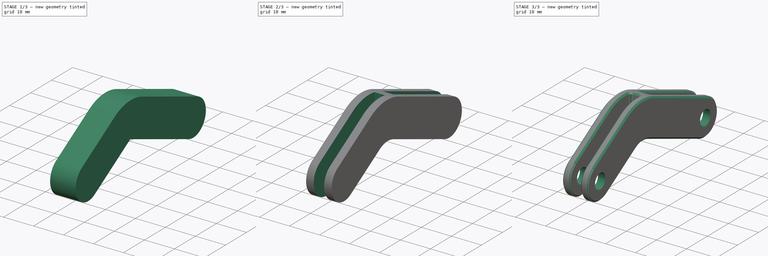
[diagram: build sequence overview — one tinted view per stage of 3, left to right]
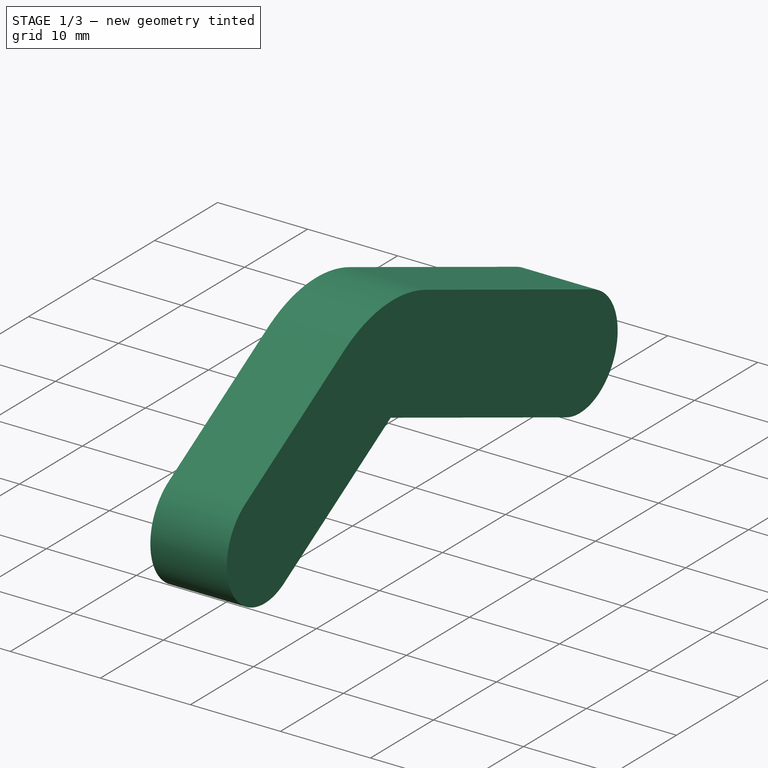
[diagram: stage 1 of 3 — iso view after this stage's code; geometry added in this stage tinted green]
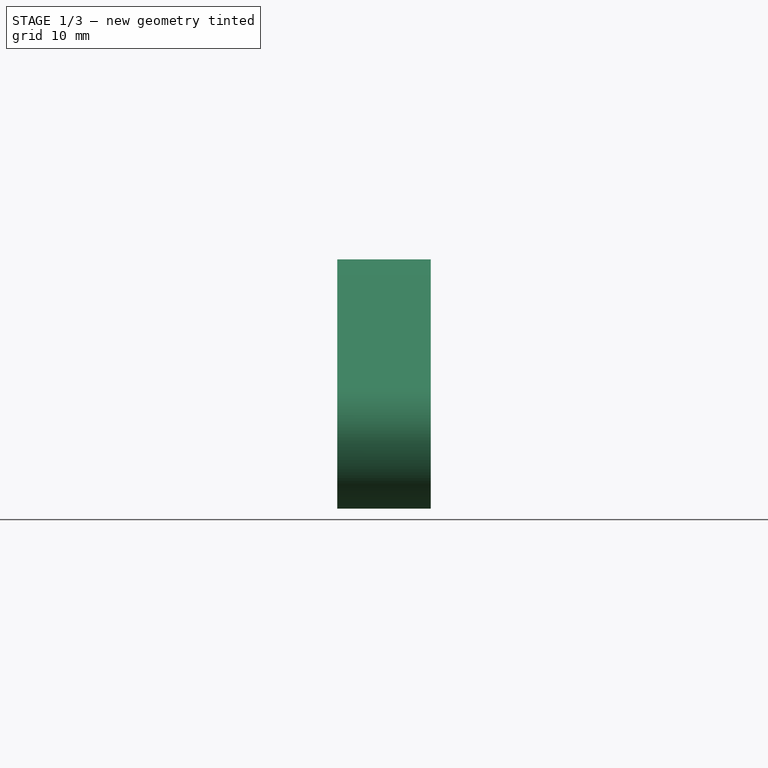
[diagram: stage 1 of 3 — front view after this stage's code; geometry added in this stage tinted green]
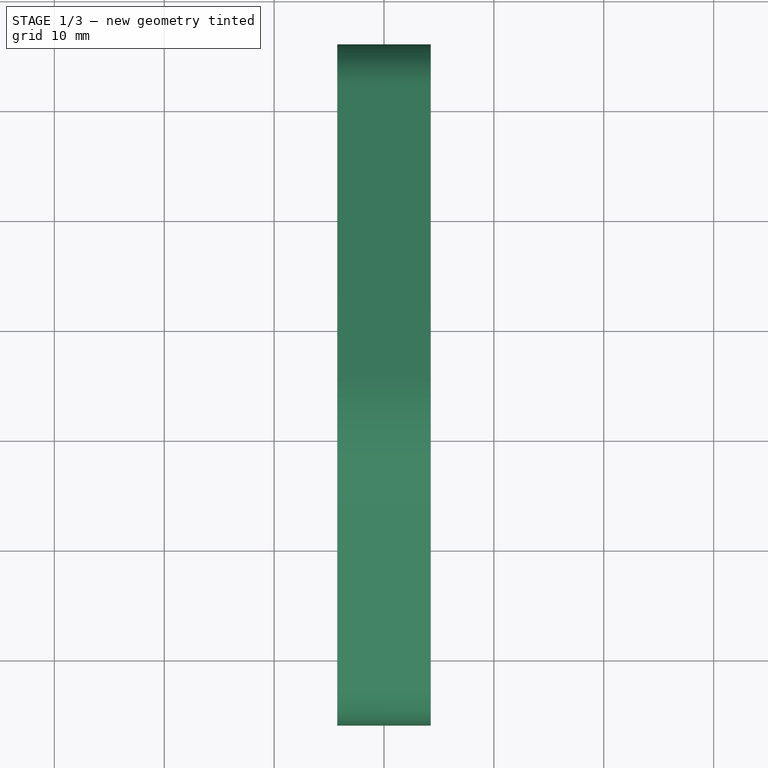
[diagram: stage 1 of 3 — top view after this stage's code; geometry added in this stage tinted green]
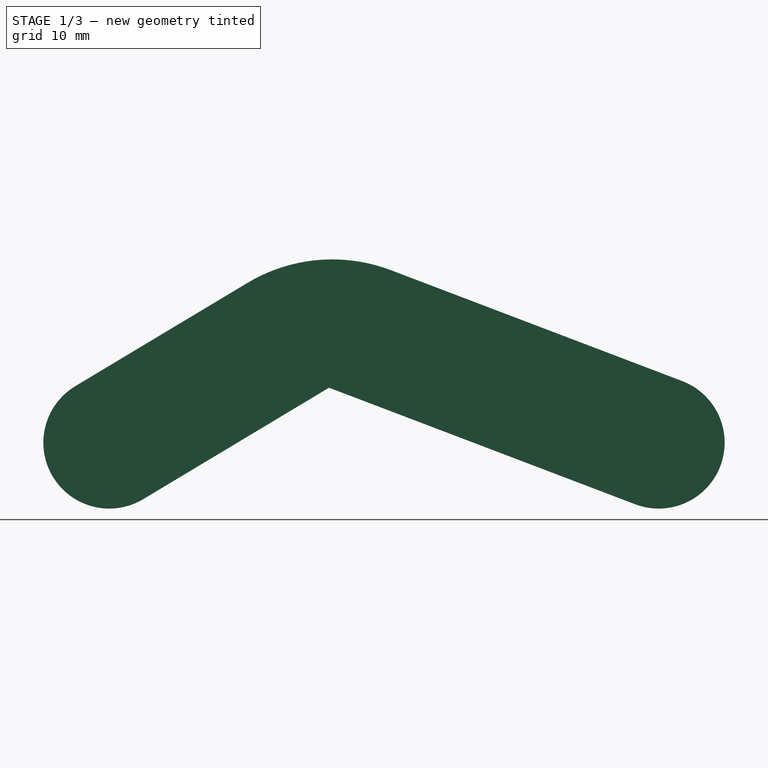
[diagram: stage 1 of 3 — right view after this stage's code; geometry added in this stage tinted green]
FCSTD DOCUMENT  (FreeCAD 2023.114R26244 +5346 (Git))
Label: arm
License: All rights reserved
LicenseURL: http://en.wikipedia.org/wiki/All_rights_reserved
objects: Sketcher::SketchObject×4, PartDesign::Fillet×3, PartDesign::Pad×2, PartDesign::Pocket×2, Spreadsheet::Sheet×1, PartDesign::Chamfer×1, PartDesign::Body×1
note: 33 computed .brp shape members not serialized (recipe doc carries the construction recipe); baked Part::Feature solids carry a one-line shape summary decoded from their .brp

FEATURE [Spreadsheet::Sheet] Spreadsheet
  PythonMode = false
  ShowCells = 0
  TreeRank = 1
  cells = A1=clevis_dia; B1(clevis_dia)=12; A2=clevis_hole_dia; B2(clevis_hole_dia)=5; A3=clevis_wall_thk; B3(clevis_wall_thk)=2.5; A4=clevis_gap_width; B4(clevis_gap_width)=3.5; A5=clevis_thk; B5(clevis_thk)==clevis_wall_thk * 2 + clevis_gap_width; A6=hole_centers; B6(hole_centers)=50; A7=elbow_x; B7(elbow_x)=20; A8=elbow_z; B8(elbow_z)=5; A9=elbow_rad_outer; B9(elbow_rad_outer)=15; A10=elbow_rad_inner; B10(elbow_rad_inner)==elbow_rad_outer / 2; A11=midpoint_wall_width; B11(midpoint_wall_width)=4
FEATURE [Sketcher::SketchObject] Sketch
  ArcFitTolerance = 1e-06
  AttachmentSupport = -> [YZ_Plane]
  ExternalBSplineMaxDegree = 5
  ExternalBSplineTolerance = 0.0001
  FullyConstrained = true
  InternalTolerance = 1e-06
  InvalidShape = false
  MakeInternals = false
  MapMode = 5
  Placement = pos=(0,0,0) rot=(0.57735,0.57735,0.57735;2.0944rad)
  Support = -> [YZ_Plane]
  TreeRank = 12
  ValidateShape = true
  expr: Constraints[2] = Spreadsheet.clevis_dia
  expr: Constraints[3] = Spreadsheet.clevis_dia
  expr: Constraints[4] = Spreadsheet.hole_centers
  sketch-geometry (2):
    g0: Circle CenterX=0 CenterY=0 CenterZ=0 NormalX=0 NormalY=0 NormalZ=1 AngleXU=0 Radius=6
    g1: Circle CenterX=50 CenterY=0 CenterZ=0 NormalX=0 NormalY=0 NormalZ=1 AngleXU=0 Radius=6
  constraints (5):
    c: Coincident(g0,g-1)
    c: PointOnObject(g1,g-1)
    c: Diameter(g0) = 12
    c: Diameter(g1) = 12
    c: Distance(g0,g1) = 50
FEATURE [PartDesign::Pad] Pad
  AddSubType = 0
  AlongSketchNormal = false
  AutoTaperInnerAngle = true
  CheckUpToFaceLimits = true
  ClaimChildren = false
  Direction = (1,-2e-16,3e-16)
  Fit = 0
  FitJoin = 0
  InnerFit = 0
  InnerFitJoin = 0
  InvalidShape = false
  Length = 8.5
  Length2 = 100
  Linearize = true
  Midplane = true
  NewSolid = false
  Profile = -> Sketch
  Refine = true
  Suppress = false
  TaperInnerAngle = 0
  TaperInnerAngleRev = 0
  TreeRank = 13
  Type = 0
  ValidateShape = true
  _ProfileBasedVersion = 1
  expr: Length = Spreadsheet.clevis_thk
FEATURE [Sketcher::SketchObject] Sketch001
  ArcFitTolerance = 1e-06
  AttachmentSupport = -> [YZ_Plane]
  ExternalBSplineMaxDegree = 5
  ExternalBSplineTolerance = 0.0001
  ExternalGeometry = -> [Pad]
  FullyConstrained = true
  InternalTolerance = 1e-06
  InvalidShape = false
  MakeInternals = false
  MapMode = 5
  Placement = pos=(0,0,0) rot=(0.57735,0.57735,0.57735;2.0944rad)
  Support = -> [YZ_Plane]
  TreeRank = 14
  ValidateShape = true
  expr: Constraints[8] = Spreadsheet.elbow_x
  expr: Constraints[9] = Spreadsheet.elbow_z
  sketch-geometry (6):
    g0: LineSegment StartX=3.08634 StartY=-5.14534 StartZ=0 EndX=20 EndY=5 EndZ=0
    g1: LineSegment StartX=20 StartY=5 StartZ=0 EndX=47.8654 EndY=-5.60746 EndZ=0
    g2: LineSegment StartX=52.1346 StartY=5.60746 StartZ=0 EndX=18.8239 EndY=18.2878 EndZ=0
    g3: LineSegment StartX=18.8239 StartY=18.2878 StartZ=0 EndX=-3.08634 EndY=5.14534 EndZ=0
    g4: LineSegment StartX=-3.08634 StartY=5.14534 StartZ=0 EndX=3.08634 EndY=-5.14534 EndZ=0
    g5: LineSegment StartX=47.8654 StartY=-5.60746 StartZ=0 EndX=52.1346 EndY=5.60746 EndZ=0
  constraints (14):
    c: Coincident(g1,g0)
    c: Coincident(g3,g2)
    c: Tangent(g3,g-3) = -1.5708
    c: Tangent(g0,g-3) = -1.5708
    c: Tangent(g1,g-4) = -1.5708
    c: Tangent(g2,g-4) = -1.5708
    c: Parallel(g3,g0)
    c: Parallel(g1,g2)
    c: DistanceX(g-3,g0) = 20
    c: DistanceY(g-3,g0) = 5
    c: Coincident(g4,g3)
    c: Coincident(g4,g0)
    c: Coincident(g5,g1)
    c: Coincident(g5,g2)
FEATURE [PartDesign::Pad] Pad001
  AddSubType = 0
  AlongSketchNormal = false
  AutoTaperInnerAngle = true
  BaseFeature = -> Pad
  CheckUpToFaceLimits = true
  ClaimChildren = false
  Direction = (1,-2e-16,3e-16)
  Fit = 0
  FitJoin = 0
  InnerFit = 0
  InnerFitJoin = 0
  InvalidShape = false
  Length = 8.5
  Length2 = 100
  Linearize = true
  Midplane = true
  NewSolid = false
  Profile = -> Sketch001
  Refine = true
  Suppress = false
  TaperInnerAngle = 0
  TaperInnerAngleRev = 0
  TreeRank = 15
  Type = 0
  ValidateShape = true
  _ProfileBasedVersion = 1
  expr: Length = Spreadsheet.clevis_thk
FEATURE [PartDesign::Fillet] Fillet
  AddSubType = 0
  Base = -> Pad001 [Edge11]
  BaseFeature = -> Pad001
  InvalidShape = false
  NewSolid = false
  Radius = 15
  Refine = true
  SupportTransform = false
  Suppress = false
  TreeRank = 16
  ValidateShape = true
  expr: Radius = Spreadsheet.elbow_rad_outer
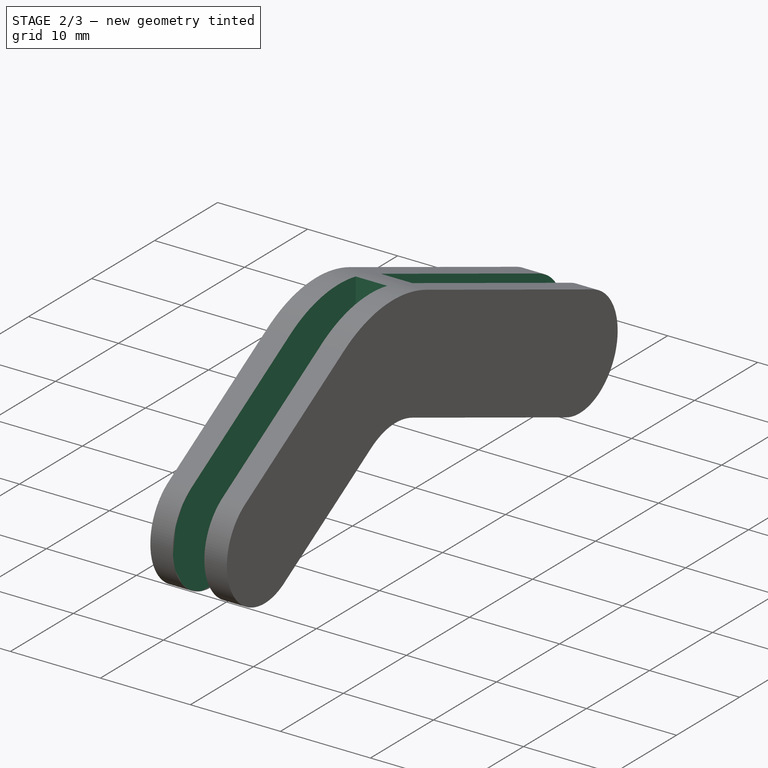
[diagram: stage 2 of 3 — iso view after this stage's code; geometry added in this stage tinted green]
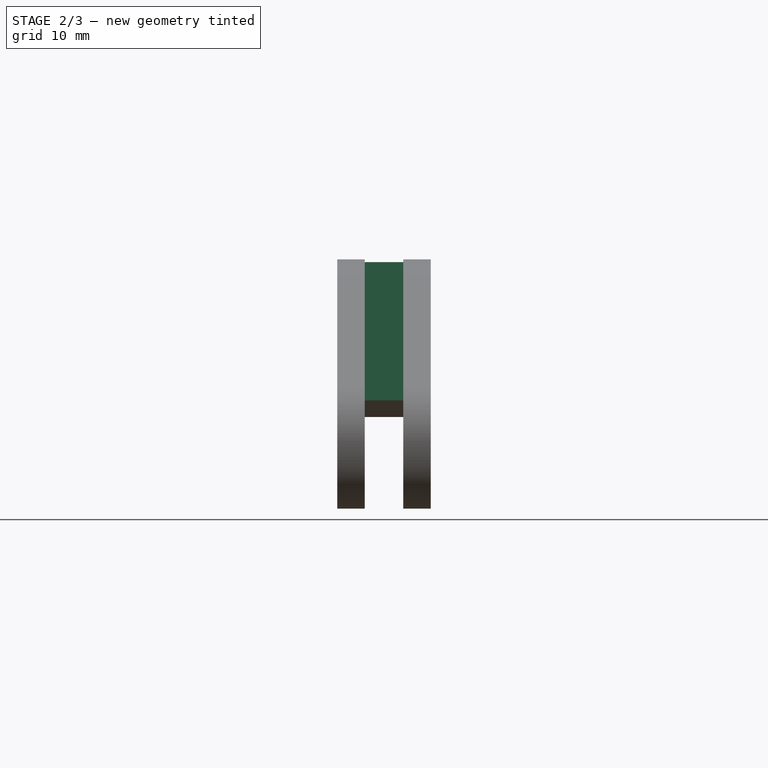
[diagram: stage 2 of 3 — front view after this stage's code; geometry added in this stage tinted green]
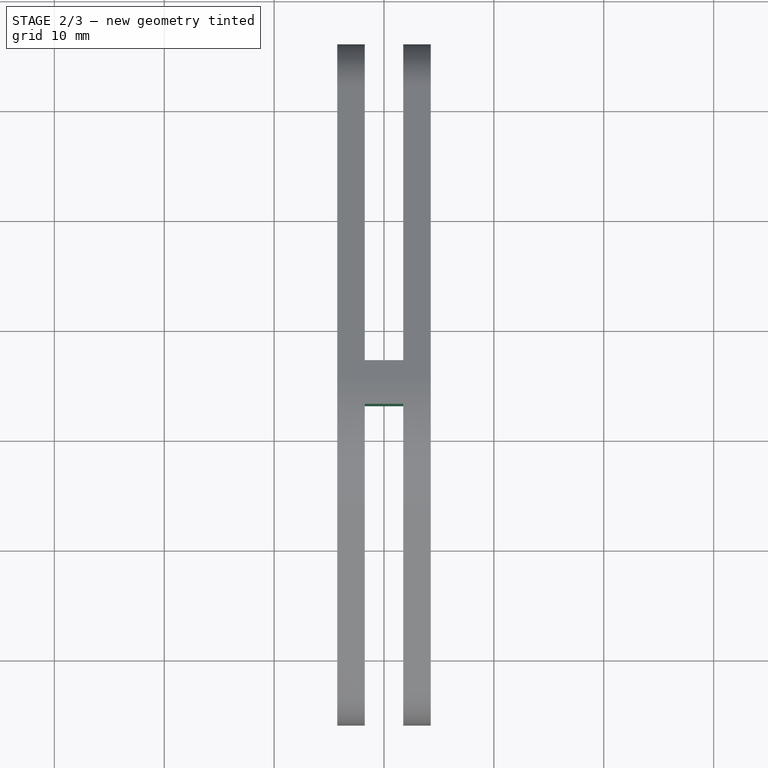
[diagram: stage 2 of 3 — top view after this stage's code; geometry added in this stage tinted green]
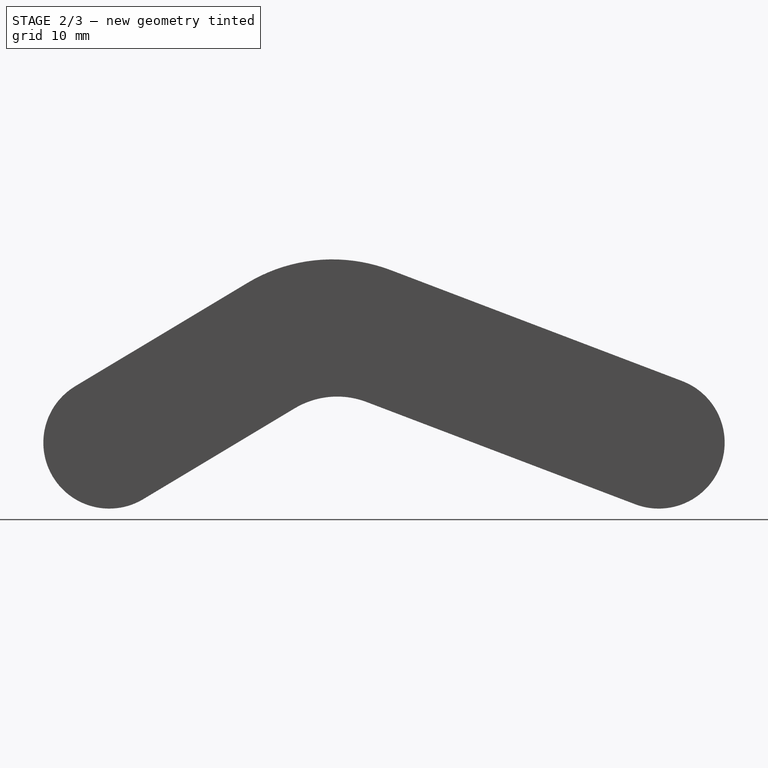
[diagram: stage 2 of 3 — right view after this stage's code; geometry added in this stage tinted green]
FEATURE [PartDesign::Fillet] Fillet001
  AddSubType = 0
  Base = -> Fillet [Edge22]
  BaseFeature = -> Fillet
  InvalidShape = false
  NewSolid = false
  Radius = 7.5
  Refine = true
  SupportTransform = false
  Suppress = false
  TreeRank = 17
  ValidateShape = true
  expr: Radius = Spreadsheet.elbow_rad_inner
FEATURE [Sketcher::SketchObject] Sketch002
  ArcFitTolerance = 1e-06
  AttachmentSupport = -> [XY_Plane]
  ExternalBSplineMaxDegree = 5
  ExternalBSplineTolerance = 0.0001
  FullyConstrained = true
  InternalTolerance = 1e-06
  InvalidShape = false
  MakeInternals = false
  MapMode = 5
  Support = -> [XY_Plane]
  TreeRank = 18
  ValidateShape = true
  expr: Constraints[16] = Spreadsheet.midpoint_wall_width
  expr: Constraints[17] = Spreadsheet.clevis_gap_width
  expr: Constraints[18] = Spreadsheet.clevis_gap_width
  expr: Constraints[19] = Spreadsheet.hole_centers / 2 - Spreadsheet.midpoint_wall_width / 2
  expr: Constraints[20] = Spreadsheet.clevis_dia
  sketch-geometry (8):
    g0: LineSegment StartX=-1.75 StartY=23 StartZ=0 EndX=1.75 EndY=23 EndZ=0
    g1: LineSegment StartX=1.75 StartY=23 StartZ=0 EndX=1.75 EndY=-12 EndZ=0
    g2: LineSegment StartX=1.75 StartY=-12 StartZ=0 EndX=-1.75 EndY=-12 EndZ=0
    g3: LineSegment StartX=-1.75 StartY=-12 StartZ=0 EndX=-1.75 EndY=23 EndZ=0
    g4: LineSegment StartX=1.75 StartY=27 StartZ=0 EndX=-1.75 EndY=27 EndZ=0
    g5: LineSegment StartX=-1.75 StartY=27 StartZ=0 EndX=-1.75 EndY=62 EndZ=0
    g6: LineSegment StartX=-1.75 StartY=62 StartZ=0 EndX=1.75 EndY=62 EndZ=0
    g7: LineSegment StartX=1.75 StartY=62 StartZ=0 EndX=1.75 EndY=27 EndZ=0
  constraints (22):
    c: Coincident(g0,g1)
    c: Coincident(g1,g2)
    c: Coincident(g2,g3)
    c: Coincident(g3,g0)
    c: Horizontal(g0)
    c: Vertical(g1)
    c: Vertical(g3)
    c: Coincident(g4,g5)
    c: Coincident(g5,g6)
    c: Coincident(g6,g7)
    c: Coincident(g7,g4)
    c: Horizontal(g6)
    c: Vertical(g5)
    c: Vertical(g7)
    c: Symmetric(g2,g1,g-2)
    c: Symmetric(g4,g4,g-2)
    c: DistanceY(g0,g4) = 4
    c: Distance(g0) = 3.5
    c: Distance(g4) = 3.5
    c: DistanceY(g-1,g0) = 23
    c: DistanceY(g2,g-1) = 12
    c: Equal(g1,g7)
FEATURE [PartDesign::Pocket] Pocket
  AddSubType = 1
  AutoTaperInnerAngle = true
  BaseFeature = -> Fillet001
  CheckUpToFaceLimits = true
  ClaimChildren = false
  Fit = 0
  FitJoin = 0
  InnerFit = 0
  InnerFitJoin = 0
  InvalidShape = false
  Length = 5
  Length2 = 100
  Linearize = true
  Midplane = true
  NewSolid = false
  Profile = -> Sketch002
  Refine = true
  Suppress = false
  TaperInnerAngle = 0
  TaperInnerAngleRev = 0
  TreeRank = 19
  Type = 1
  ValidateShape = true
  _ProfileBasedVersion = 1
  _Version = 1
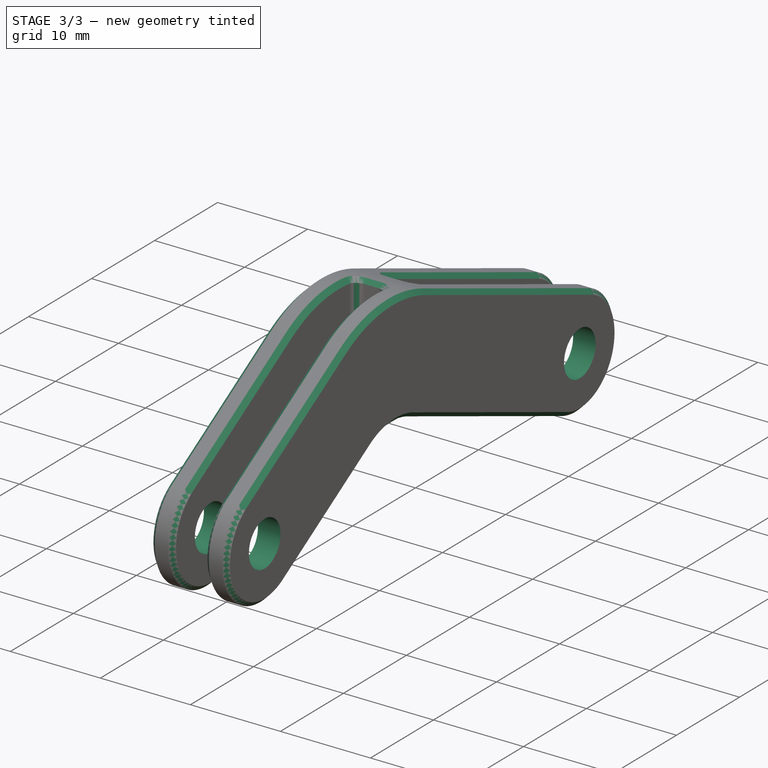
[diagram: stage 3 of 3 — iso view after this stage's code; geometry added in this stage tinted green]
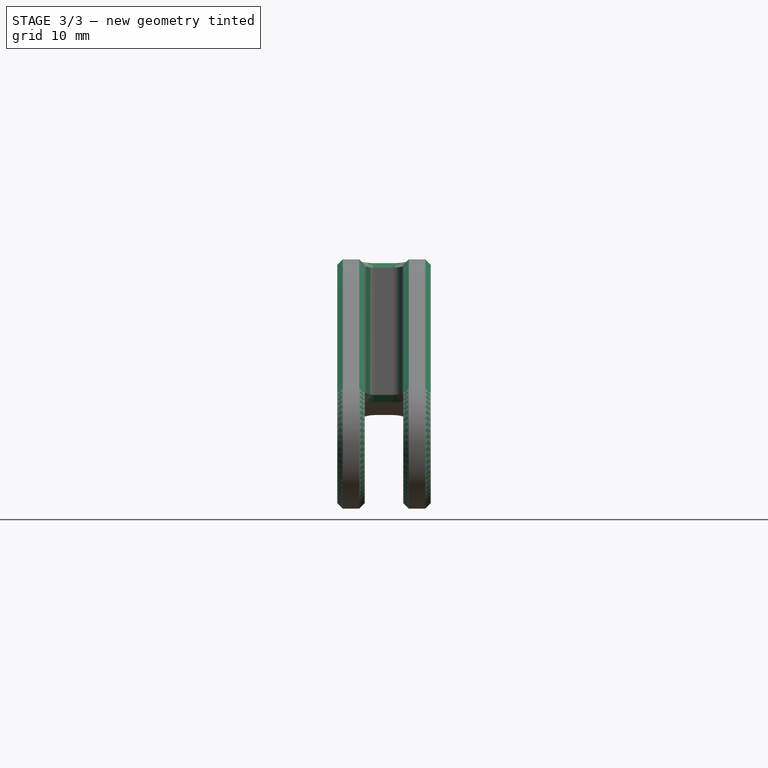
[diagram: stage 3 of 3 — front view after this stage's code; geometry added in this stage tinted green]
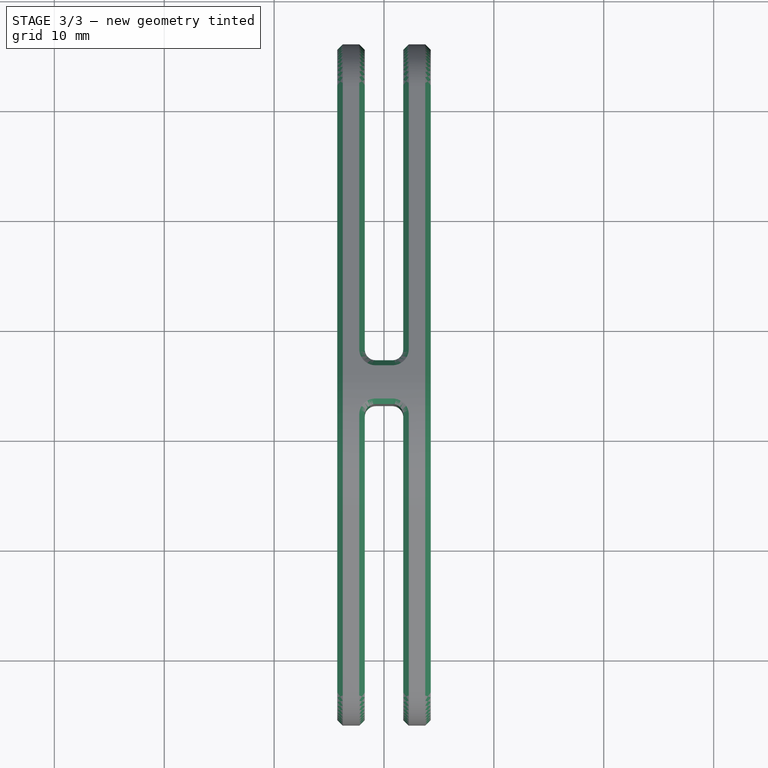
[diagram: stage 3 of 3 — top view after this stage's code; geometry added in this stage tinted green]
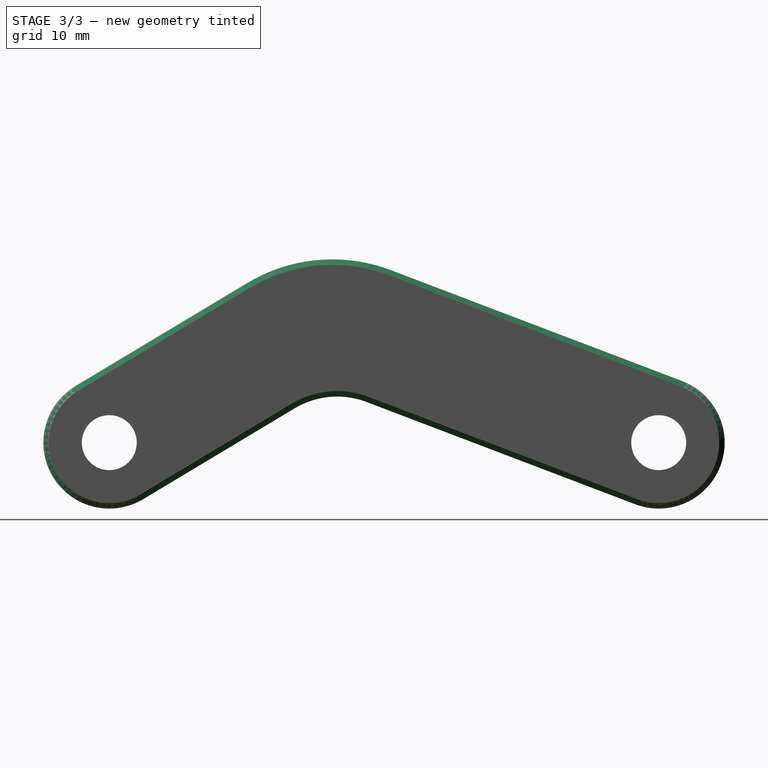
[diagram: stage 3 of 3 — right view after this stage's code; geometry added in this stage tinted green]
FEATURE [Sketcher::SketchObject] Sketch003
  ArcFitTolerance = 1e-06
  AttachmentSupport = -> [YZ_Plane]
  ExternalBSplineMaxDegree = 5
  ExternalBSplineTolerance = 0.0001
  FullyConstrained = true
  InternalTolerance = 1e-06
  InvalidShape = false
  MakeInternals = false
  MapMode = 5
  Placement = pos=(0,0,0) rot=(0.57735,0.57735,0.57735;2.0944rad)
  Support = -> [YZ_Plane]
  TreeRank = 20
  ValidateShape = true
  expr: Constraints[2] = Spreadsheet.hole_centers
  expr: Constraints[3] = Spreadsheet.clevis_hole_dia
  sketch-geometry (2):
    g0: Circle CenterX=0 CenterY=0 CenterZ=0 NormalX=0 NormalY=0 NormalZ=1 AngleXU=0 Radius=2.5
    g1: Circle CenterX=50 CenterY=0 CenterZ=0 NormalX=0 NormalY=0 NormalZ=1 AngleXU=0 Radius=2.5
  constraints (5):
    c: Coincident(g0,g-1)
    c: PointOnObject(g1,g-1)
    c: Distance(g0,g1) = 50
    c: Diameter(g0) = 5
    c: Equal(g1,g0)
FEATURE [PartDesign::Pocket] Pocket001
  AddSubType = 1
  AutoTaperInnerAngle = true
  BaseFeature = -> Pocket
  CheckUpToFaceLimits = true
  ClaimChildren = false
  Fit = 0
  FitJoin = 0
  InnerFit = 0
  InnerFitJoin = 0
  InvalidShape = false
  Length = 5
  Length2 = 100
  Linearize = true
  Midplane = true
  NewSolid = false
  Profile = -> Sketch003
  Refine = true
  Suppress = false
  TaperInnerAngle = 0
  TaperInnerAngleRev = 0
  TreeRank = 21
  Type = 1
  ValidateShape = true
  _ProfileBasedVersion = 1
  _Version = 1
FEATURE [PartDesign::Fillet] Fillet002
  AddSubType = 0
  Base = -> Pocket001 [Edge48,Edge62,Edge63,Edge49]
  BaseFeature = -> Pocket001
  InvalidShape = false
  NewSolid = false
  Radius = 1
  Refine = true
  SupportTransform = false
  Suppress = false
  TreeRank = 23
  ValidateShape = true
FEATURE [PartDesign::Chamfer] Chamfer
  AddSubType = 0
  Angle = 45
  Base = -> Fillet002 [Edge64,Edge53,Edge29,Edge11]
  BaseFeature = -> Fillet002
  ChamferType = 0
  FlipDirection = false
  InvalidShape = false
  NewSolid = false
  Refine = true
  Size = 0.5
  Size2 = 1
  SupportTransform = false
  Suppress = false
  TreeRank = 24
  ValidateShape = true
FEATURE [PartDesign::Body] Body
  AutoGroupSolids = false
  ClaimAllChildren = false
  ExportMode = 0
  Group = -> [Sketch,Pad,Sketch001,Pad001,Fillet,Fillet001,Sketch002,Pocket,Sketch003,Pocket001,Fillet002,Chamfer]
  InvalidShape = false
  Origin = -> Origin
  Tip = -> Chamfer
  TreeRank = 11
  ValidateShape = true
  _ExportChildren = -> [Pad,Pad001,Fillet,Fillet001,Pocket,Pocket001,Fillet002,Chamfer]
  _GroupVersion = 1
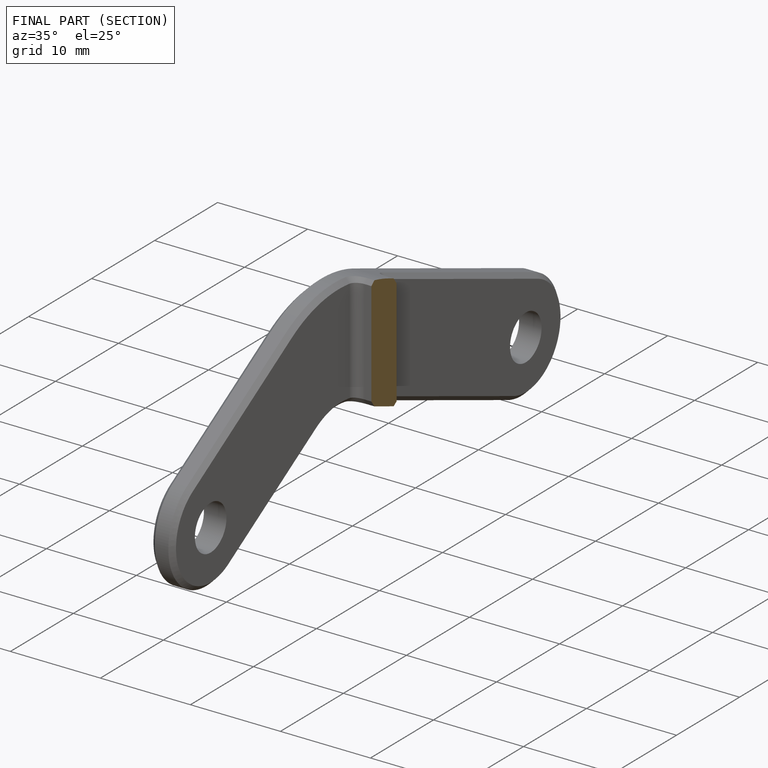
[diagram: finished part — half-section view (interior)]
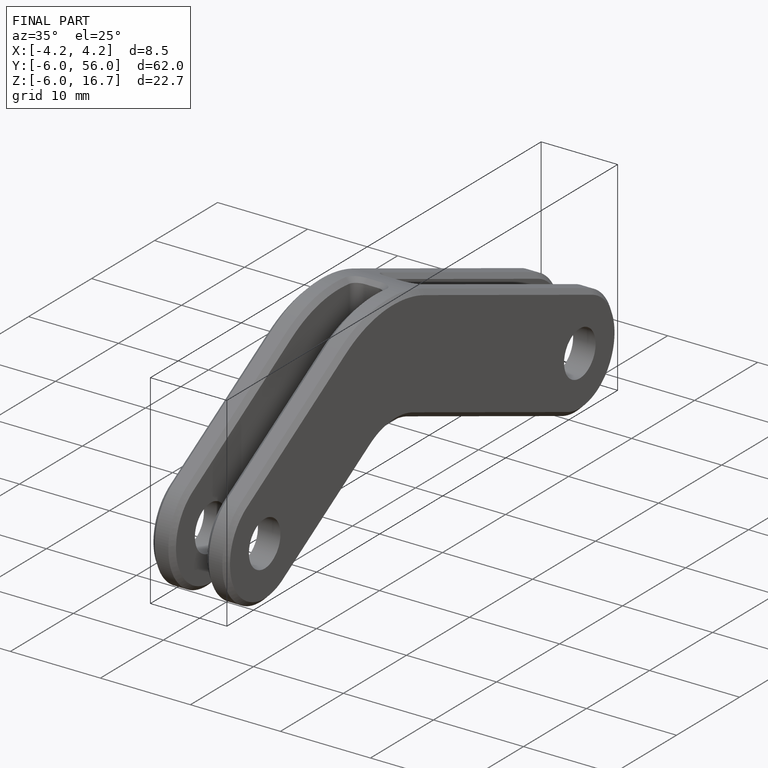
[diagram: finished part — iso view with bounding-box wireframe]
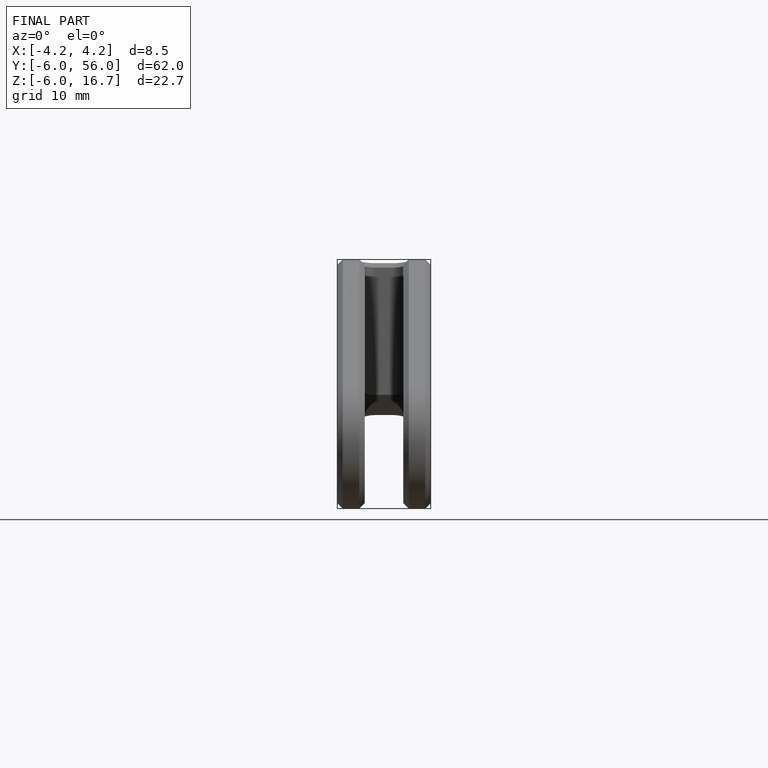
[diagram: finished part — front view with bounding-box wireframe]
